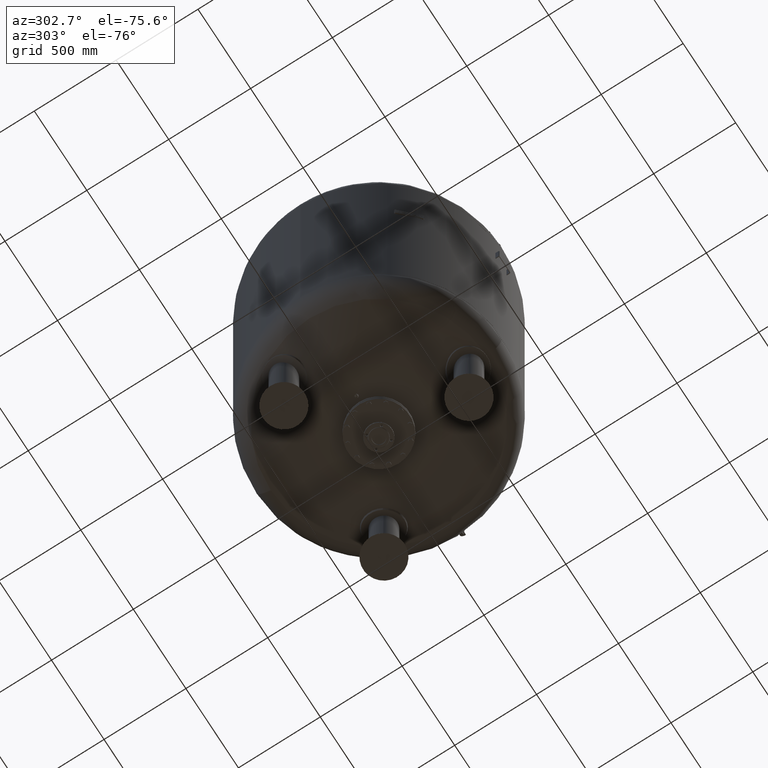
[diagram: clean part render]
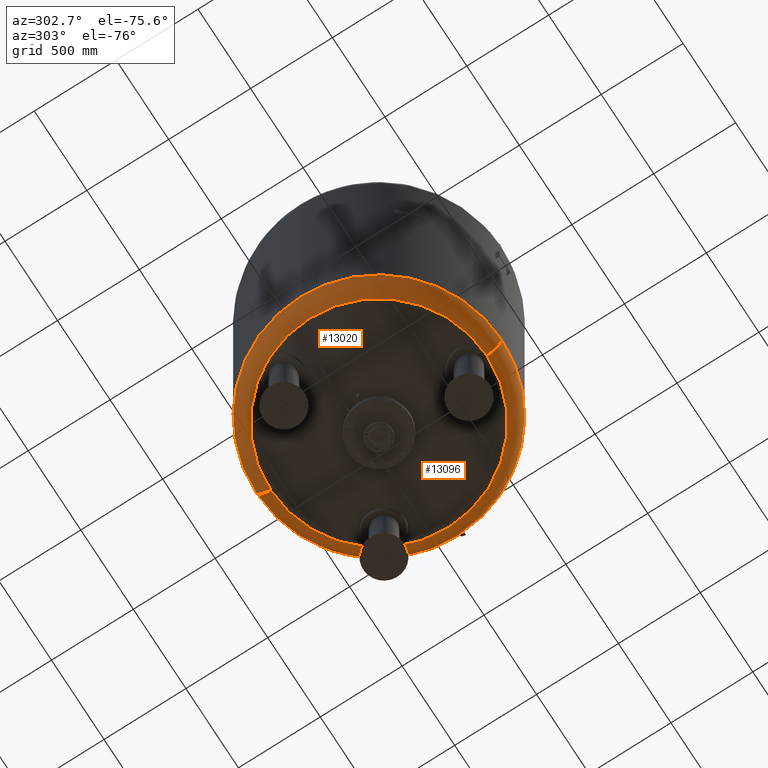
[diagram: same view with one multi-face feature highlighted, each face labeled with its STEP entity id]
A machine part, auxiliary view. The highlighted faces form ONE feature: a constant-radius fillet chain: 2 tangent blend faces with common blend radius 159 mm. The faces share edges in the B-rep.
Their STEP definitions:
[1] entity #13096 (Torus):
#12942=CARTESIAN_POINT('',(750.0,3.761120E-014,784.237667415898160));
#12943=VERTEX_POINT('',#12942);
#12950=CARTESIAN_POINT('',(-1.628998E-013,750.0,784.237667415898270));
#12951=VERTEX_POINT('',#12950);
#12952=CARTESIAN_POINT('',(-5.075605E-014,-5.423428E-014,784.237667415898160));
#12953=DIRECTION('',(0.0,0.0,1.0));
#12954=DIRECTION('',(-1.0,0.0,0.0));
#12955=AXIS2_PLACEMENT_3D('',#12952,#12953,#12954);
#12956=CIRCLE('',#12955,750.0);
#12957=EDGE_CURVE('',#12943,#12951,#12956,.T.);
#12974=CARTESIAN_POINT('',(-7.105427E-014,-750.0,784.237667415898040));
#12975=VERTEX_POINT('',#12974);
#12976=CARTESIAN_POINT('',(-4.647817E-014,-660.606666666666800,641.283437133770350));
#12977=VERTEX_POINT('',#12976);
#12978=CARTESIAN_POINT('',(-7.105427E-014,-591.0,784.237667415898040));
#12979=DIRECTION('',(1.0,0.0,0.0));
#12980=DIRECTION('',(0.0,-1.0,0.0));
#12981=AXIS2_PLACEMENT_3D('',#12978,#12979,#12980);
#12982=CIRCLE('',#12981,159.0);
#12983=EDGE_CURVE('',#12975,#12977,#12982,.T.);
#12993=CARTESIAN_POINT('',(-1.273765E-013,660.606666666666800,641.283437133770800));
#12994=VERTEX_POINT('',#12993);
#12995=CARTESIAN_POINT('',(-1.434285E-013,591.0,784.237667415898270));
#12996=DIRECTION('',(-1.0,0.0,0.0));
#12997=DIRECTION('',(0.0,1.0,0.0));
#12998=AXIS2_PLACEMENT_3D('',#12995,#12996,#12997);
#12999=CIRCLE('',#12998,159.0);
#13000=EDGE_CURVE('',#12951,#12994,#12999,.T.);
#13028=CARTESIAN_POINT('',(-2.617994E-014,-2.797401E-014,641.283437133770580));
#13029=DIRECTION('',(0.0,0.0,1.0));
#13030=DIRECTION('',(-1.0,0.0,0.0));
#13031=AXIS2_PLACEMENT_3D('',#13028,#13029,#13030);
#13032=CIRCLE('',#13031,660.606666666666800);
#13033=EDGE_CURVE('',#12977,#12994,#13032,.T.);
#13078=CARTESIAN_POINT('',(-7.105427E-014,-5.423428E-014,784.237667415898160));
#13079=DIRECTION('',(-1.719159E-016,-1.836970E-016,1.0));
#13080=DIRECTION('',(0.0,-1.0,0.0));
#13081=AXIS2_PLACEMENT_3D('',#13078,#13079,#13080);
#13082=TOROIDAL_SURFACE('',#13081,591.0,159.0);
#13083=ORIENTED_EDGE('',*,*,#12983,.T.);
#13084=ORIENTED_EDGE('',*,*,#13033,.T.);
#13085=ORIENTED_EDGE('',*,*,#13000,.F.);
#13086=ORIENTED_EDGE('',*,*,#12957,.F.);
#13087=CARTESIAN_POINT('',(-5.075605E-014,-5.423428E-014,784.237667415898160));
#13088=DIRECTION('',(0.0,0.0,1.0));
#13089=DIRECTION('',(-1.0,0.0,0.0));
#13090=AXIS2_PLACEMENT_3D('',#13087,#13088,#13089);
#13091=CIRCLE('',#13090,750.0);
#13092=EDGE_CURVE('',#12975,#12943,#13091,.T.);
#13093=ORIENTED_EDGE('',*,*,#13092,.F.);
#13094=EDGE_LOOP('',(#13083,#13084,#13085,#13086,#13093));
#13095=FACE_OUTER_BOUND('',#13094,.T.);
#13096=ADVANCED_FACE('',(#13095),#13082,.T.);
[2] entity #13020 (Torus):
#12925=CARTESIAN_POINT('',(-750.0,-5.423428E-014,784.237667415897930));
#12926=VERTEX_POINT('',#12925);
#12950=CARTESIAN_POINT('',(-1.628998E-013,750.0,784.237667415898270));
#12951=VERTEX_POINT('',#12950);
#12959=CARTESIAN_POINT('',(-5.075605E-014,-5.423428E-014,784.237667415898160));
#12960=DIRECTION('',(0.0,0.0,1.0));
#12961=DIRECTION('',(-1.0,0.0,0.0));
#12962=AXIS2_PLACEMENT_3D('',#12959,#12960,#12961);
#12963=CIRCLE('',#12962,750.0);
#12964=EDGE_CURVE('',#12951,#12926,#12963,.T.);
#12969=CARTESIAN_POINT('',(-7.105427E-014,-5.423428E-014,784.237667415898160));
#12970=DIRECTION('',(-1.719159E-016,-1.836970E-016,1.0));
#12971=DIRECTION('',(0.0,-1.0,0.0));
#12972=AXIS2_PLACEMENT_3D('',#12969,#12970,#12971);
#12973=TOROIDAL_SURFACE('',#12972,591.0,159.0);
#12974=CARTESIAN_POINT('',(-7.105427E-014,-750.0,784.237667415898040));
#12975=VERTEX_POINT('',#12974);
#12976=CARTESIAN_POINT('',(-4.647817E-014,-660.606666666666800,641.283437133770350));
#12977=VERTEX_POINT('',#12976);
#12978=CARTESIAN_POINT('',(-7.105427E-014,-591.0,784.237667415898040));
#12979=DIRECTION('',(1.0,0.0,0.0));
#12980=DIRECTION('',(0.0,-1.0,0.0));
#12981=AXIS2_PLACEMENT_3D('',#12978,#12979,#12980);
#12982=CIRCLE('',#12981,159.0);
#12983=EDGE_CURVE('',#12975,#12977,#12982,.T.);
#12984=ORIENTED_EDGE('',*,*,#12983,.F.);
#12985=CARTESIAN_POINT('',(-5.075605E-014,-5.423428E-014,784.237667415898160));
#12986=DIRECTION('',(0.0,0.0,1.0));
#12987=DIRECTION('',(-1.0,0.0,0.0));
#12988=AXIS2_PLACEMENT_3D('',#12985,#12986,#12987);
#12989=CIRCLE('',#12988,750.0);
#12990=EDGE_CURVE('',#12926,#12975,#12989,.T.);
#12991=ORIENTED_EDGE('',*,*,#12990,.F.);
#12992=ORIENTED_EDGE('',*,*,#12964,.F.);
#12993=CARTESIAN_POINT('',(-1.273765E-013,660.606666666666800,641.283437133770800));
#12994=VERTEX_POINT('',#12993);
#12995=CARTESIAN_POINT('',(-1.434285E-013,591.0,784.237667415898270));
#12996=DIRECTION('',(-1.0,0.0,0.0));
#12997=DIRECTION('',(0.0,1.0,0.0));
#12998=AXIS2_PLACEMENT_3D('',#12995,#12996,#12997);
#12999=CIRCLE('',#12998,159.0);
#13000=EDGE_CURVE('',#12951,#12994,#12999,.T.);
#13001=ORIENTED_EDGE('',*,*,#13000,.T.);
#13002=CARTESIAN_POINT('',(-660.606666666666800,-2.797401E-014,641.283437133770460));
#13003=VERTEX_POINT('',#13002);
#13004=CARTESIAN_POINT('',(-2.617994E-014,-2.797401E-014,641.283437133770580));
#13005=DIRECTION('',(0.0,0.0,1.0));
#13006=DIRECTION('',(-1.0,0.0,0.0));
#13007=AXIS2_PLACEMENT_3D('',#13004,#13005,#13006);
#13008=CIRCLE('',#13007,660.606666666666800);
#13009=EDGE_CURVE('',#12994,#13003,#13008,.T.);
#13010=ORIENTED_EDGE('',*,*,#13009,.T.);
#13011=CARTESIAN_POINT('',(-2.617994E-014,-2.797401E-014,641.283437133770580));
#13012=DIRECTION('',(0.0,0.0,1.0));
#13013=DIRECTION('',(-1.0,0.0,0.0));
#13014=AXIS2_PLACEMENT_3D('',#13011,#13012,#13013);
#13015=CIRCLE('',#13014,660.606666666666800);
#13016=EDGE_CURVE('',#13003,#12977,#13015,.T.);
#13017=ORIENTED_EDGE('',*,*,#13016,.T.);
#13018=EDGE_LOOP('',(#12984,#12991,#12992,#13001,#13010,#13017));
#13019=FACE_OUTER_BOUND('',#13018,.T.);
#13020=ADVANCED_FACE('',(#13019),#12973,.T.);